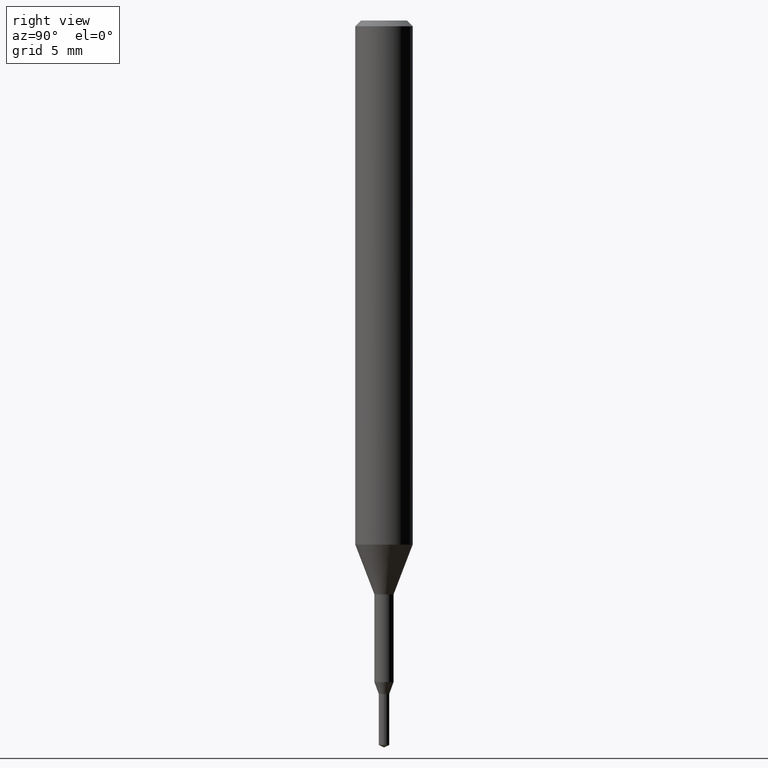
[diagram: clean part render]
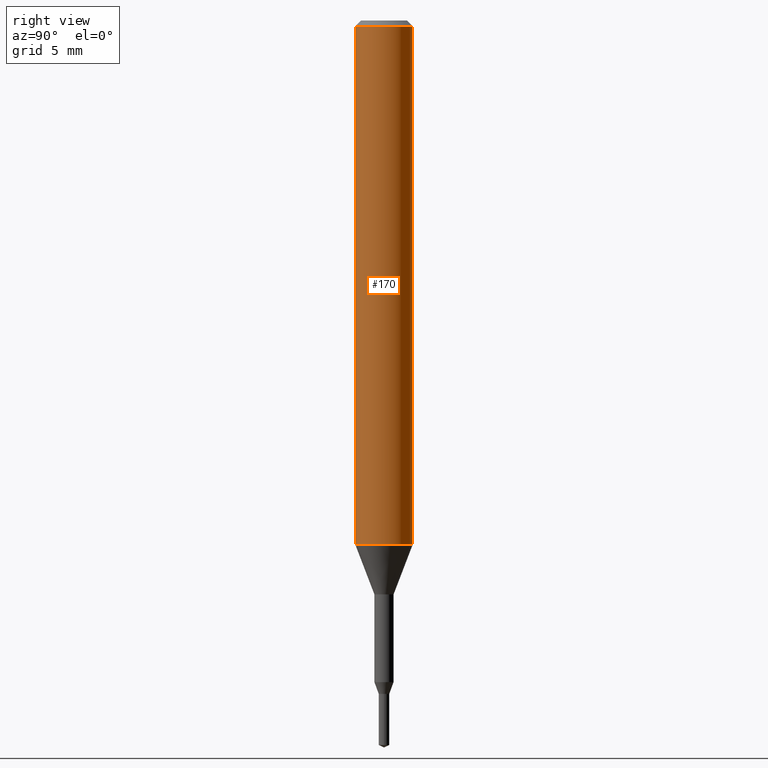
[diagram: same view with one face highlighted and labeled with its STEP entity id]
A machine part, right view. The second image highlights one B-rep face of the part: STEP entity #170.
In plain terms, the highlighted cylindrical surface (edge-blend (fillet) strip) has radius 1.5 mm, axis along (-0, -0, 1).
Its self-contained STEP definition (entity closure, byte-faithful):
#122=VERTEX_POINT('',#300);
#134=VERTEX_POINT('',#312);
#164=EDGE_CURVE('',#254,#176,#349,.T.);
#170=ADVANCED_FACE('',(#355),#356,.T.);
#176=VERTEX_POINT('',#363);
#194=EDGE_CURVE('',#134,#254,#382,.T.);
#218=EDGE_CURVE('',#176,#122,#408,.T.);
#244=EDGE_CURVE('',#134,#122,#438,.T.);
#254=VERTEX_POINT('',#449);
#300=CARTESIAN_POINT('',(1.83690953073357E-016,-1.5,-0.300000000000001));
#312=CARTESIAN_POINT('',(0.0,1.5,-0.300000000000001));
#349=CIRCLE('',#550,1.5);
#355=FACE_OUTER_BOUND('',#557,.T.);
#356=CYLINDRICAL_SURFACE('',#558,1.5);
#363=CARTESIAN_POINT('',(1.83690953073357E-016,-1.5,-27.395));
#382=LINE('',#592,#593);
#408=LINE('',#632,#633);
#438=CIRCLE('',#672,1.5);
#449=CARTESIAN_POINT('',(0.0,1.5,-27.395));
#550=AXIS2_PLACEMENT_3D('',#783,#784,#785);
#557=EDGE_LOOP('',(#790,#791,#792,#793));
#558=AXIS2_PLACEMENT_3D('',#794,#795,#796);
#592=CARTESIAN_POINT('',(-1.83690953073357E-016,1.5,-13.8475));
#593=VECTOR('',#822,1.0);
#632=CARTESIAN_POINT('',(1.83690953073357E-016,-1.5,-13.8475));
#633=VECTOR('',#860,1.0);
#672=AXIS2_PLACEMENT_3D('',#905,#906,#907);
#783=CARTESIAN_POINT('',(0.0,0.0,-27.395));
#784=DIRECTION('',(0.0,0.0,-1.0));
#785=DIRECTION('',(0.0,1.0,0.0));
#790=ORIENTED_EDGE('',*,*,#194,.F.);
#791=ORIENTED_EDGE('',*,*,#244,.T.);
#792=ORIENTED_EDGE('',*,*,#218,.F.);
#793=ORIENTED_EDGE('',*,*,#164,.F.);
#794=CARTESIAN_POINT('',(0.0,0.0,-13.8475));
#795=DIRECTION('',(-0.0,-0.0,1.0));
#796=DIRECTION('',(0.0,1.0,0.0));
#822=DIRECTION('',(0.0,0.0,-1.0));
#860=DIRECTION('',(-0.0,-0.0,1.0));
#905=CARTESIAN_POINT('',(0.0,0.0,-0.300000000000001));
#906=DIRECTION('',(0.0,0.0,-1.0));
#907=DIRECTION('',(0.0,1.0,0.0));